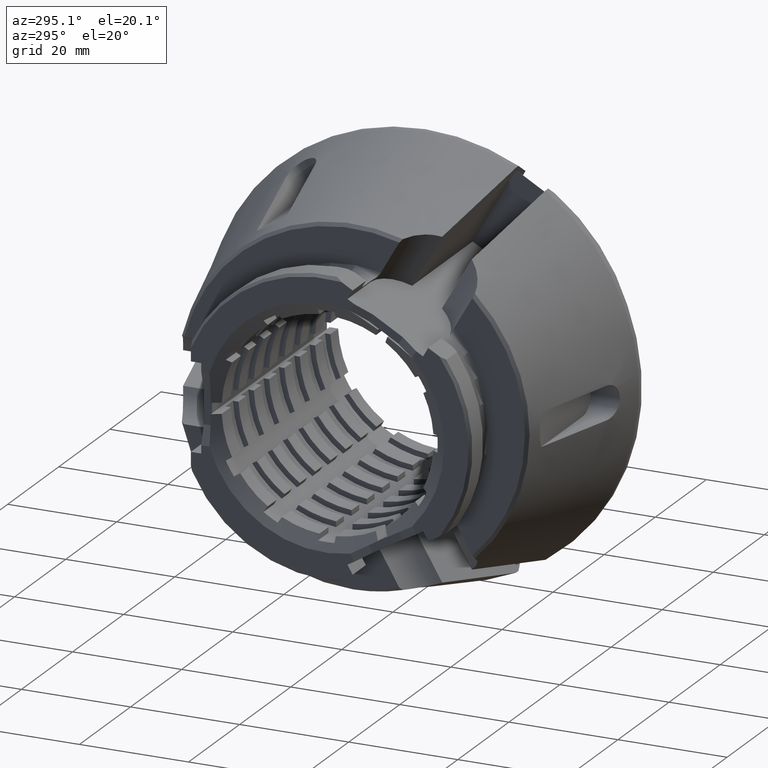
[diagram: clean part render]
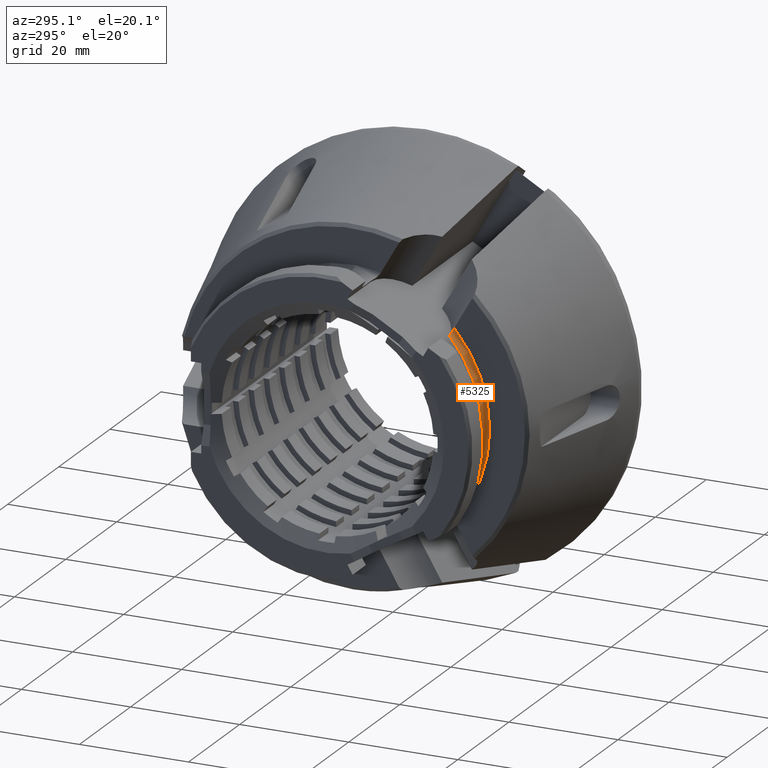
[diagram: same view with one face highlighted and labeled with its STEP entity id]
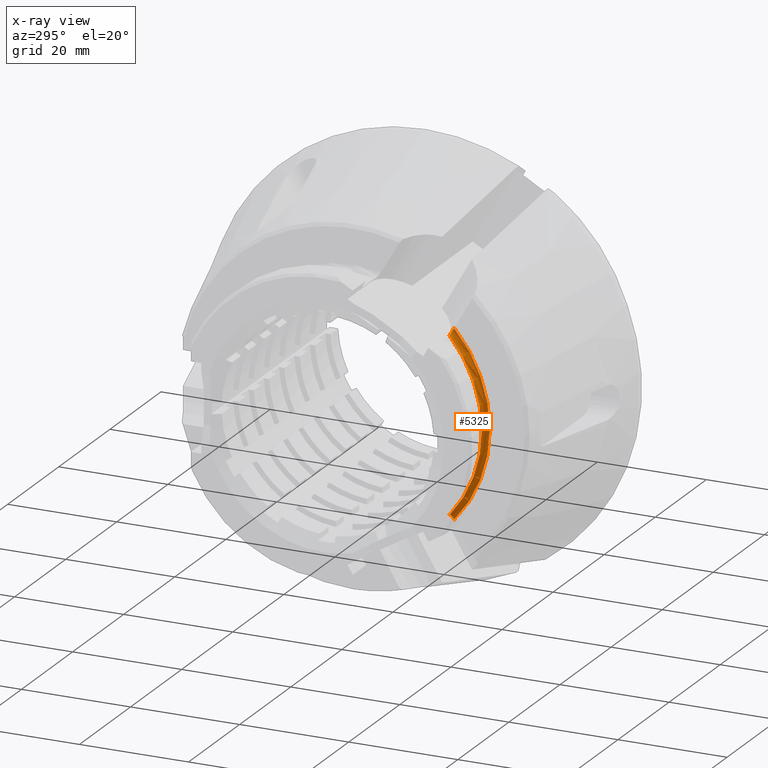
[diagram: x-ray of the same camera — body ghosted, the highlighted face saturated]
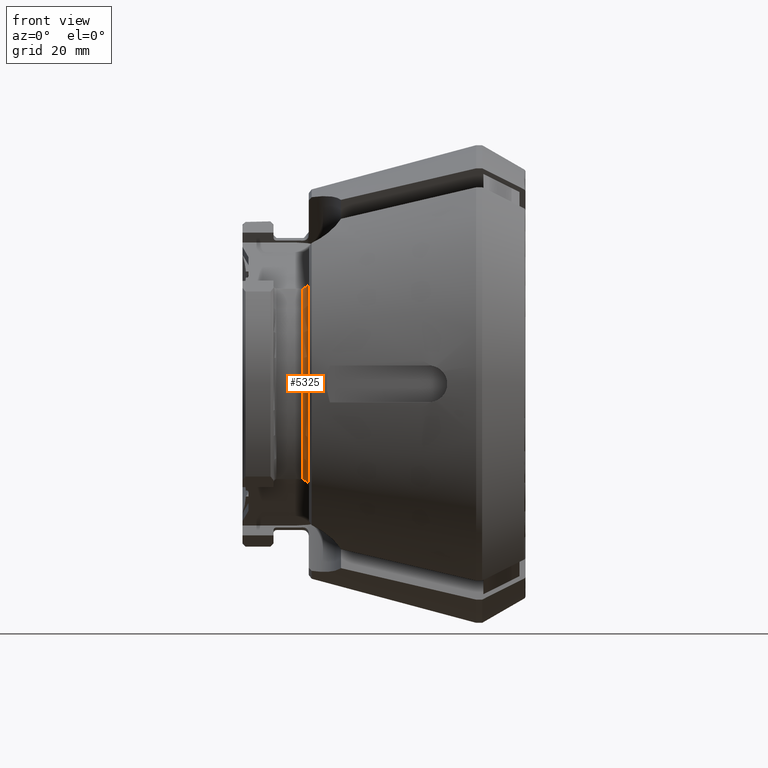
[diagram: same view with one face highlighted and labeled with its STEP entity id]
A machine part, auxiliary view. The second image highlights one B-rep face of the part: STEP entity #5325.
The next image is the same camera in x-ray: the body ghosted, the highlighted face saturated — about 0% of this face is hidden behind the body in this view.
A second angle (front view) of the same face is appended — the face is thin or edge-on in the first view.
In plain terms, the highlighted toroidal blend (fillet) surface has major radius 25.25 mm and minor (blend) radius 1 mm.
Its self-contained STEP definition (entity closure, byte-faithful):
#408 = B_SPLINE_CURVE_WITH_KNOTS ( 'NONE', 3,
 ( #5645, #5979, #14116, #5599, #5563, #5520, #5477, #5461 ),
 .UNSPECIFIED., .F., .F.,
 ( 4, 2, 2, 4 ),
 ( 1.986374344302812400E-007, 0.0004140147543125957700, 0.0008278308711907612400, 0.001655463104947084700 ),
 .UNSPECIFIED. ) ;
#1038 = VERTEX_POINT ( 'NONE', #14238 ) ;
#1320 = CARTESIAN_POINT ( 'NONE',  ( -37.00000000000000000, -18.33098469043606500, 15.87568897021475100 ) ) ;
#1426 = DIRECTION ( 'NONE',  ( 0.0000000000000000000, 0.0000000000000000000, -1.000000000000000000 ) ) ;
#1551 = CARTESIAN_POINT ( 'NONE',  ( -35.99999999999999300, -18.72446895121471000, 16.93979818341990700 ) ) ;
#1662 = FACE_OUTER_BOUND ( 'NONE', #16665, .T. ) ;
#2274 = TOROIDAL_SURFACE ( 'NONE', #5649, 25.24999999999999600, 1.000000000000002700 ) ;
#3543 = CARTESIAN_POINT ( 'NONE',  ( -37.00000000000000000, -18.33098469043584100, -15.87568897021500400 ) ) ;
#3568 = CIRCLE ( 'NONE', #9698, 25.24999999999999600 ) ;
#3600 = CARTESIAN_POINT ( 'NONE',  ( -37.00000000000000000, -18.33098469043606500, 15.87568897021475100 ) ) ;
#3610 = DIRECTION ( 'NONE',  ( 1.000000000000000000, -0.0000000000000000000, -0.0000000000000000000 ) ) ;
#3625 = CARTESIAN_POINT ( 'NONE',  ( -36.86111738371156600, -18.31886184144845900, 15.88968670975275000 ) ) ;
#3642 = CARTESIAN_POINT ( 'NONE',  ( -36.72747366255530500, -18.31977996516869200, 15.93256898425962700 ) ) ;
#3646 = CARTESIAN_POINT ( 'NONE',  ( -36.48413118814013200, -18.34501075562515000, 16.06240498441107800 ) ) ;
#3663 = CARTESIAN_POINT ( 'NONE',  ( -36.37596889600914100, -18.36918772572715100, 16.14843147986655900 ) ) ;
#3689 = CARTESIAN_POINT ( 'NONE',  ( -36.10543416725382600, -18.47335335178069100, 16.44754684642302000 ) ) ;
#3761 = CARTESIAN_POINT ( 'NONE',  ( -35.99999999999999300, -18.58554414016252200, 16.69917335224555200 ) ) ;
#3777 = B_SPLINE_CURVE_WITH_KNOTS ( 'NONE', 3,
 ( #16503, #3761, #3689, #3663, #3646, #3642, #3625, #3600 ),
 .UNSPECIFIED., .F., .F.,
 ( 4, 2, 2, 4 ),
 ( 0.001582372897019633300, 0.002410330127860091500, 0.002824308743280319400, 0.003238287358700547000 ),
 .UNSPECIFIED. ) ;
#4478 = DIRECTION ( 'NONE',  ( 0.0000000000000000000, 0.0000000000000000000, -1.000000000000000000 ) ) ;
#4502 = DIRECTION ( 'NONE',  ( 1.000000000000000000, -0.0000000000000000000, -0.0000000000000000000 ) ) ;
#4534 = CARTESIAN_POINT ( 'NONE',  ( -35.99999999999999300, 0.0000000000000000000, 0.0000000000000000000 ) ) ;
#4678 = CARTESIAN_POINT ( 'NONE',  ( -37.00000000000000000, 0.0000000000000000000, 0.0000000000000000000 ) ) ;
#5325 = ADVANCED_FACE ( 'NONE', ( #1662 ), #2274, .F. ) ;
#5461 = CARTESIAN_POINT ( 'NONE',  ( -35.99999999999999300, -18.72446895121446200, -16.93979818342016600 ) ) ;
#5477 = CARTESIAN_POINT ( 'NONE',  ( -36.00000000000000000, -18.58667713320284800, -16.70113575375674500 ) ) ;
#5520 = CARTESIAN_POINT ( 'NONE',  ( -36.10567587816018400, -18.47349251841073700, -16.44772509351091800 ) ) ;
#5563 = CARTESIAN_POINT ( 'NONE',  ( -36.37450199496972700, -18.36963728783721100, -16.14983227263173400 ) ) ;
#5599 = CARTESIAN_POINT ( 'NONE',  ( -36.48358340525700800, -18.34509911953651300, -16.06276599793423500 ) ) ;
#5645 = CARTESIAN_POINT ( 'NONE',  ( -37.00000000000000000, -18.33098469043584100, -15.87568897021500400 ) ) ;
#5649 = AXIS2_PLACEMENT_3D ( 'NONE', #4678, #3610, #1426 ) ;
#5979 = CARTESIAN_POINT ( 'NONE',  ( -36.86111868755298800, -18.31886195525863300, -15.88968657834128500 ) ) ;
#6950 = CIRCLE ( 'NONE', #11939, 24.24999999999999300 ) ;
#8091 = ORIENTED_EDGE ( 'NONE', *, *, #10182, .T. ) ;
#8124 = ORIENTED_EDGE ( 'NONE', *, *, #10942, .T. ) ;
#8196 = ORIENTED_EDGE ( 'NONE', *, *, #11033, .F. ) ;
#8241 = ORIENTED_EDGE ( 'NONE', *, *, #11098, .T. ) ;
#9109 = VERTEX_POINT ( 'NONE', #1320 ) ;
#9698 = AXIS2_PLACEMENT_3D ( 'NONE', #4534, #4502, #4478 ) ;
#10182 = EDGE_CURVE ( 'NONE', #9109, #12559, #6950, .T. ) ;
#10942 = EDGE_CURVE ( 'NONE', #12559, #1038, #408, .T. ) ;
#11033 = EDGE_CURVE ( 'NONE', #11288, #1038, #3568, .T. ) ;
#11098 = EDGE_CURVE ( 'NONE', #11288, #9109, #3777, .T. ) ;
#11288 = VERTEX_POINT ( 'NONE', #1551 ) ;
#11939 = AXIS2_PLACEMENT_3D ( 'NONE', #14395, #14377, #14374 ) ;
#12559 = VERTEX_POINT ( 'NONE', #3543 ) ;
#14116 = CARTESIAN_POINT ( 'NONE',  ( -36.72714077918938400, -18.31978302643083700, -15.93267810055928800 ) ) ;
#14238 = CARTESIAN_POINT ( 'NONE',  ( -35.99999999999999300, -18.72446895121446200, -16.93979818342016600 ) ) ;
#14374 = DIRECTION ( 'NONE',  ( 0.0000000000000000000, 0.0000000000000000000, -1.000000000000000000 ) ) ;
#14377 = DIRECTION ( 'NONE',  ( 1.000000000000000000, -0.0000000000000000000, -0.0000000000000000000 ) ) ;
#14395 = CARTESIAN_POINT ( 'NONE',  ( -37.00000000000000000, 0.0000000000000000000, 0.0000000000000000000 ) ) ;
#16503 = CARTESIAN_POINT ( 'NONE',  ( -35.99999999999999300, -18.72446895121471000, 16.93979818341990700 ) ) ;
#16665 = EDGE_LOOP ( 'NONE', ( #8091, #8124, #8196, #8241 ) ) ;